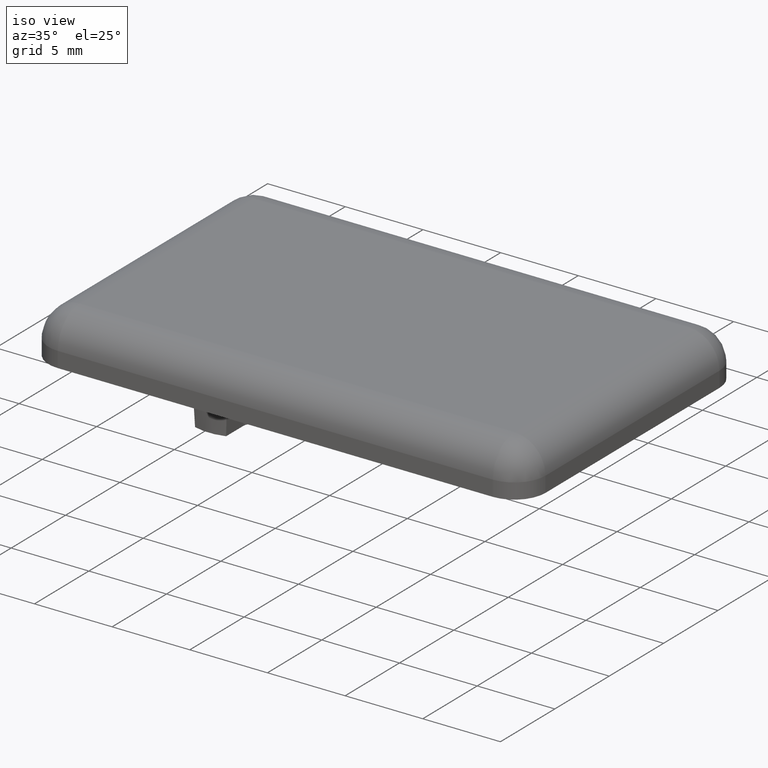
[diagram: clean part render]
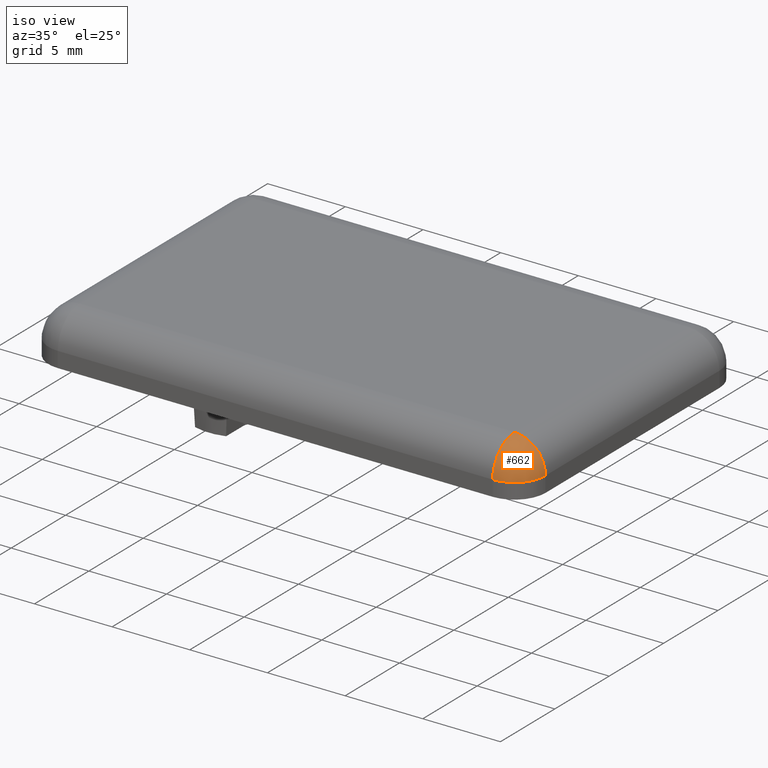
[diagram: same view with one face highlighted and labeled with its STEP entity id]
A machine part, iso view. The second image highlights one B-rep face of the part: STEP entity #662.
In plain terms, the highlighted spherical surface has radius 2 mm.
Its self-contained STEP definition (entity closure, byte-faithful):
#19=SPHERICAL_SURFACE('',#732,2.);
#82=FACE_OUTER_BOUND('',#122,.T.);
#122=EDGE_LOOP('',(#551,#552,#553));
#269=CIRCLE('',#733,2.);
#270=CIRCLE('',#734,2.);
#271=CIRCLE('',#735,2.);
#288=VERTEX_POINT('',#991);
#329=VERTEX_POINT('',#1132);
#330=VERTEX_POINT('',#1134);
#413=EDGE_CURVE('',#329,#288,#269,.F.);
#414=EDGE_CURVE('',#330,#329,#270,.F.);
#415=EDGE_CURVE('',#288,#330,#271,.F.);
#551=ORIENTED_EDGE('',*,*,#413,.F.);
#552=ORIENTED_EDGE('',*,*,#414,.F.);
#553=ORIENTED_EDGE('',*,*,#415,.F.);
#662=ADVANCED_FACE('',(#82),#19,.T.);
#732=AXIS2_PLACEMENT_3D('',#1131,#905,#906);
#733=AXIS2_PLACEMENT_3D('',#1133,#907,#908);
#734=AXIS2_PLACEMENT_3D('',#1135,#909,#910);
#735=AXIS2_PLACEMENT_3D('',#1136,#911,#912);
#905=DIRECTION('center_axis',(-0.408248290463862,-0.816496580927726,-0.408248290463863));
#906=DIRECTION('ref_axis',(0.577350269189626,-0.577350269189626,0.577350269189626));
#907=DIRECTION('center_axis',(1.,0.,0.));
#908=DIRECTION('ref_axis',(0.,-1.,0.));
#909=DIRECTION('center_axis',(0.,0.,1.));
#910=DIRECTION('ref_axis',(1.,0.,0.));
#911=DIRECTION('center_axis',(0.,-1.,0.));
#912=DIRECTION('ref_axis',(0.,0.,1.));
#991=CARTESIAN_POINT('',(14.,-7.99999999999996,3.));
#1131=CARTESIAN_POINT('Origin',(14.,-7.99999999999996,1.));
#1132=CARTESIAN_POINT('',(14.,-9.99999999999996,1.));
#1133=CARTESIAN_POINT('Origin',(14.,-7.99999999999996,1.));
#1134=CARTESIAN_POINT('',(16.,-7.99999999999996,1.));
#1135=CARTESIAN_POINT('Origin',(14.,-7.99999999999996,1.));
#1136=CARTESIAN_POINT('Origin',(14.,-7.99999999999996,1.));